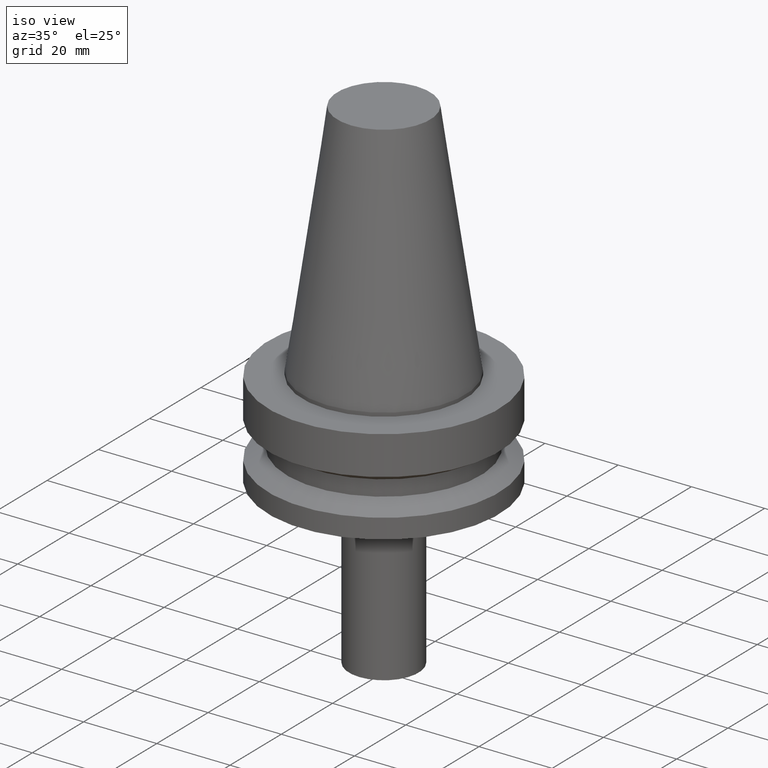
[diagram: clean part render]
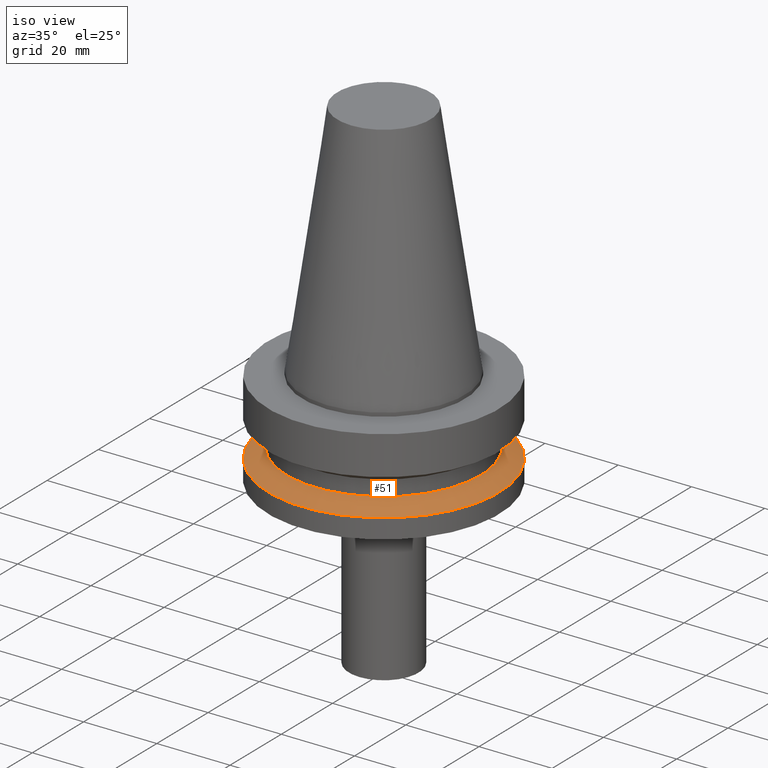
[diagram: same view with one face highlighted and labeled with its STEP entity id]
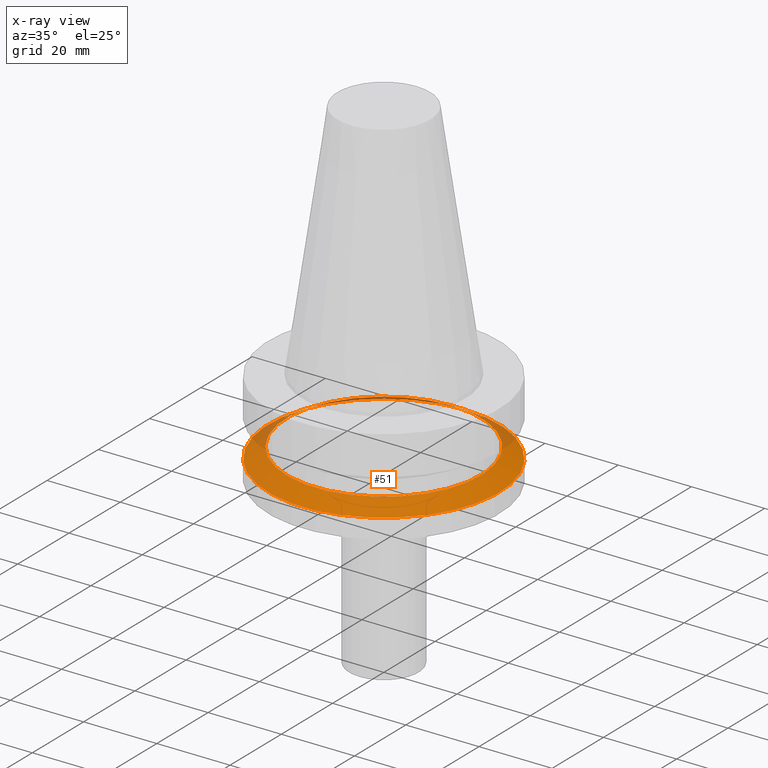
[diagram: x-ray of the same camera — body ghosted, the highlighted face saturated]
A machine part, iso view. The second image highlights one B-rep face of the part: STEP entity #51.
The next image is the same camera in x-ray: the body ghosted, the highlighted face saturated — about 12% of this face is hidden behind the body in this view.
In plain terms, the highlighted conical surface has half-angle 60 deg.
Its self-contained STEP definition (entity closure, byte-faithful):
#51=ADVANCED_FACE('Unnamed[1]',(#133,#134),#135,.T.);
#56=EDGE_CURVE('Unnamed[1]',#141,#141,#142,.T.);
#108=EDGE_CURVE('Unnamed[1]',#221,#221,#222,.T.);
#133=FACE_BOUND('',#242,.T.);
#134=FACE_BOUND('',#243,.T.);
#135=CONICAL_SURFACE('',#244,29.0000000000004,1.04719755119651);
#141=VERTEX_POINT('',#252);
#142=CIRCLE('',#253,26.5);
#221=VERTEX_POINT('',#352);
#222=CIRCLE('',#353,31.5000000000007);
#242=EDGE_LOOP('',(#368));
#243=EDGE_LOOP('',(#369));
#244=AXIS2_PLACEMENT_3D('',#370,#371,#372);
#252=CARTESIAN_POINT('',(4.16283518797867E-015,26.5,-18.7477430013855));
#253=AXIS2_PLACEMENT_3D('',#378,#379,#380);
#352=CARTESIAN_POINT('',(4.80382275010674E-015,31.5000000000007,-21.6344943473346));
#353=AXIS2_PLACEMENT_3D('',#465,#466,#467);
#368=ORIENTED_EDGE('',*,*,#108,.F.);
#369=ORIENTED_EDGE('',*,*,#56,.T.);
#370=CARTESIAN_POINT('',(4.4833289690427E-015,1.7654570425249E-014,-20.1911186743601));
#371=DIRECTION('',(2.22044604925031E-016,-6.87296523471693E-016,-1.0));
#372=DIRECTION('',(1.73640130667518E-031,1.0,-6.87296523471693E-016));
#378=CARTESIAN_POINT('',(4.16283518797866E-015,1.8646597507348E-014,-18.7477430013855));
#379=DIRECTION('',(2.22044604925031E-016,-6.87296523471693E-016,-1.0));
#380=DIRECTION('',(1.73640130667518E-031,1.0,-6.87296523471693E-016));
#465=CARTESIAN_POINT('',(4.80382275010674E-015,1.66625433431499E-014,-21.6344943473346));
#466=DIRECTION('',(2.22044604925031E-016,-6.87296523471693E-016,-1.0));
#467=DIRECTION('',(1.73640130667518E-031,1.0,-6.87296523471693E-016));